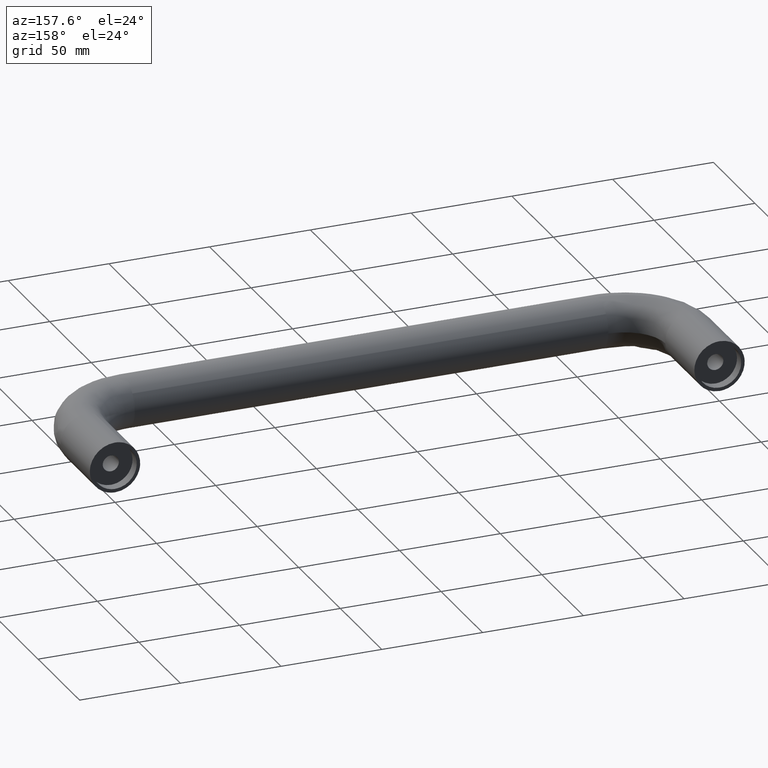
[diagram: clean part render]
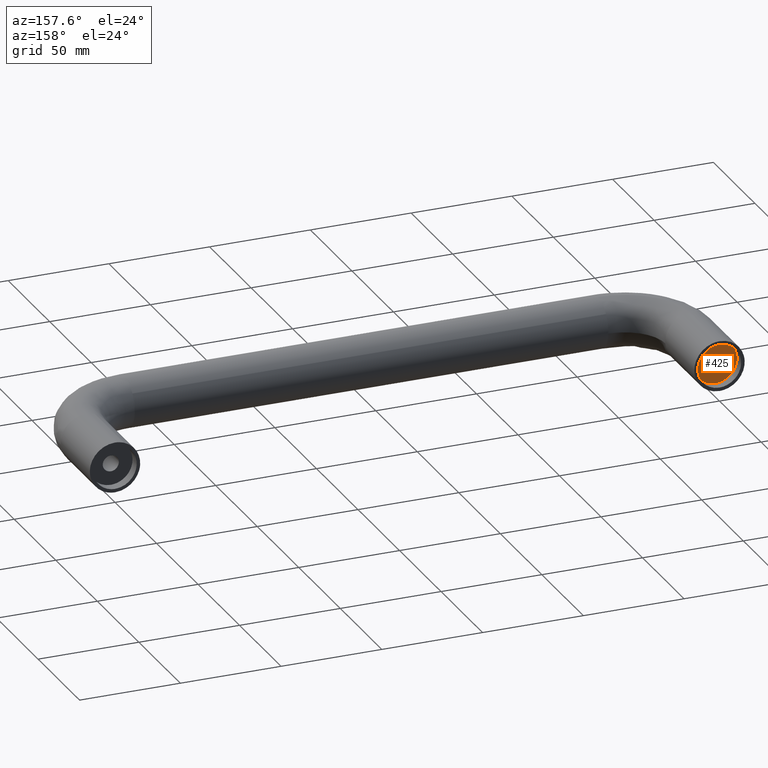
[diagram: same view with one face highlighted and labeled with its STEP entity id]
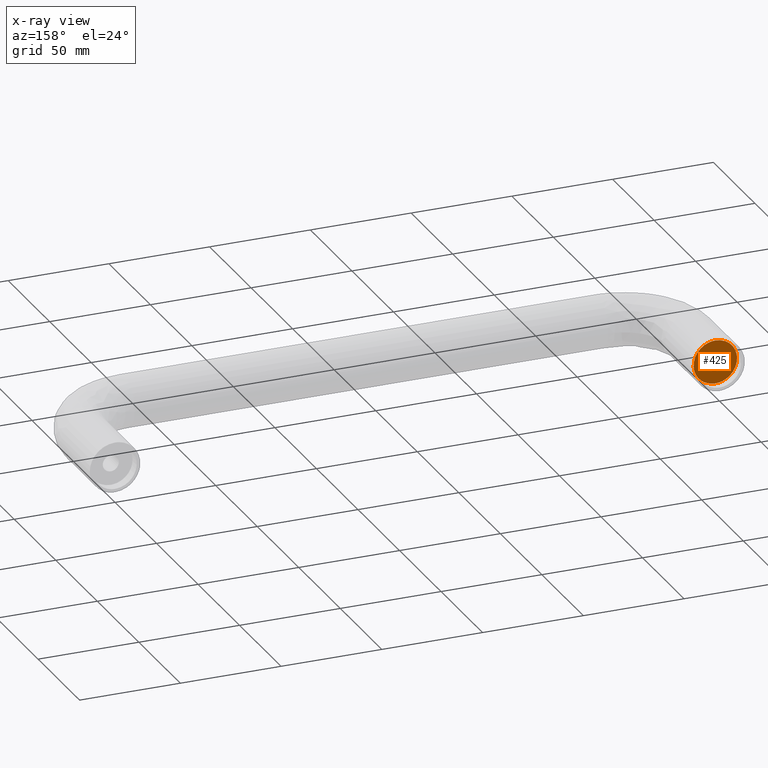
[diagram: x-ray of the same camera — body ghosted, the highlighted face saturated]
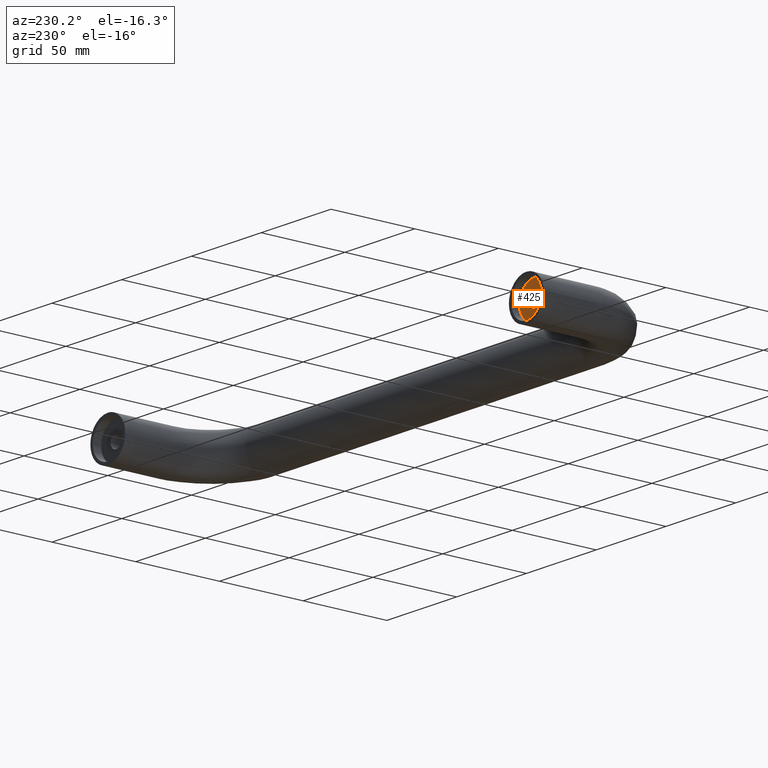
[diagram: same view with one face highlighted and labeled with its STEP entity id]
A machine part, auxiliary view. The second image highlights one B-rep face of the part: STEP entity #425.
The next image is the same camera in x-ray: the body ghosted, the highlighted face saturated — about 0% of this face is hidden behind the body in this view.
A second angle (auxiliary view) of the same face is appended — the face is thin or edge-on in the first view.
In plain terms, the highlighted face is a freeform B-spline surface patch.
Its self-contained STEP definition (entity closure, byte-faithful):
#62=CARTESIAN_POINT('',(0.0,-5.0,10.800000000000001));
#63=VERTEX_POINT('',#62);
#64=CARTESIAN_POINT('',(-10.766707764273210,-5.000000000000078,0.847351118892327));
#65=VERTEX_POINT('',#64);
#66=CARTESIAN_POINT('',(0.0,-5.0,10.800000000000001));
#67=CARTESIAN_POINT('',(-9.983423927657171,-4.999999999999999,10.800000000000001));
#68=CARTESIAN_POINT('',(-10.766707764273203,-5.000000000000078,0.847351118892327));
#76=(BOUNDED_CURVE()B_SPLINE_CURVE(2,(#66,#67,#68),.UNSPECIFIED.,.F.,.U.)B_SPLINE_CURVE_WITH_KNOTS((3,3),(0.0,0.236331413915305),.UNSPECIFIED.)CURVE()GEOMETRIC_REPRESENTATION_ITEM()RATIONAL_B_SPLINE_CURVE((1.0,0.723120525886448,0.969723592583950))REPRESENTATION_ITEM(''));
#77=EDGE_CURVE('',#63,#65,#76,.T.);
#118=CARTESIAN_POINT('',(10.766707764273210,-5.000000000000078,-0.847351118892325));
#119=VERTEX_POINT('',#118);
#125=CARTESIAN_POINT('',(10.766707764273212,-5.000000000000078,-0.847351118892325));
#126=CARTESIAN_POINT('',(10.799999999999997,-5.0,-0.424329581689702));
#127=CARTESIAN_POINT('',(10.800000000000001,-5.0,0.0));
#128=CARTESIAN_POINT('',(10.800000000000001,-5.000000000000001,10.800000000000001));
#129=CARTESIAN_POINT('',(0.0,-5.0,10.800000000000001));
#137=(BOUNDED_CURVE()B_SPLINE_CURVE(2,(#125,#126,#127,#128,#129),.UNSPECIFIED.,.F.,.U.)B_SPLINE_CURVE_WITH_KNOTS((3,2,3),(0.736331413915305,0.750000000000000,1.0),.UNSPECIFIED.)CURVE()GEOMETRIC_REPRESENTATION_ITEM()RATIONAL_B_SPLINE_CURVE((0.969723592583950,0.983986255300099,1.0,0.707106781186548,1.0))REPRESENTATION_ITEM(''));
#138=EDGE_CURVE('',#119,#63,#137,.T.);
#161=CARTESIAN_POINT('',(0.0,-5.0,-10.800000000000001));
#162=VERTEX_POINT('',#161);
#163=CARTESIAN_POINT('',(-10.766707764273203,-5.000000000000078,0.847351118892327));
#164=CARTESIAN_POINT('',(-10.799999999999999,-5.000000000000001,0.424329581689704));
#165=CARTESIAN_POINT('',(-10.800000000000001,-5.0,0.0));
#166=CARTESIAN_POINT('',(-10.800000000000001,-5.000000000000001,-10.800000000000001));
#167=CARTESIAN_POINT('',(0.0,-5.0,-10.800000000000001));
#175=(BOUNDED_CURVE()B_SPLINE_CURVE(2,(#163,#164,#165,#166,#167),.UNSPECIFIED.,.F.,.U.)B_SPLINE_CURVE_WITH_KNOTS((3,2,3),(0.236331413915305,0.250000000000000,0.500000000000000),.UNSPECIFIED.)CURVE()GEOMETRIC_REPRESENTATION_ITEM()RATIONAL_B_SPLINE_CURVE((0.969723592583950,0.983986255300099,1.0,0.707106781186548,1.0))REPRESENTATION_ITEM(''));
#176=EDGE_CURVE('',#65,#162,#175,.T.);
#178=CARTESIAN_POINT('',(0.0,-5.0,-10.800000000000001));
#179=CARTESIAN_POINT('',(9.983423927657176,-5.0,-10.800000000000002));
#180=CARTESIAN_POINT('',(10.766707764273212,-5.000000000000078,-0.847351118892325));
#188=(BOUNDED_CURVE()B_SPLINE_CURVE(2,(#178,#179,#180),.UNSPECIFIED.,.F.,.U.)B_SPLINE_CURVE_WITH_KNOTS((3,3),(0.500000000000000,0.736331413915305),.UNSPECIFIED.)CURVE()GEOMETRIC_REPRESENTATION_ITEM()RATIONAL_B_SPLINE_CURVE((1.0,0.723120525886448,0.969723592583950))REPRESENTATION_ITEM(''));
#189=EDGE_CURVE('',#162,#119,#188,.T.);
#244=CARTESIAN_POINT('',(0.0,-5.0,4.0));
#245=VERTEX_POINT('',#244);
#246=CARTESIAN_POINT('',(-3.987669334730117,-5.0,0.313836385483050));
#247=VERTEX_POINT('',#246);
#248=CARTESIAN_POINT('',(0.0,-5.0,4.0));
#249=CARTESIAN_POINT('',(-3.697561961848928,-5.000000000000001,4.0));
#250=CARTESIAN_POINT('',(-3.987669334730117,-5.0,0.313836385483050));
#258=(BOUNDED_CURVE()B_SPLINE_CURVE(2,(#248,#249,#250),.UNSPECIFIED.,.F.,.U.)B_SPLINE_CURVE_WITH_KNOTS((3,3),(0.0,0.236331300411662),.UNSPECIFIED.)CURVE()GEOMETRIC_REPRESENTATION_ITEM()RATIONAL_B_SPLINE_CURVE((1.0,0.723120658864237,0.969723355710386))REPRESENTATION_ITEM(''));
#259=EDGE_CURVE('',#245,#247,#258,.T.);
#261=CARTESIAN_POINT('',(3.987669334730117,-4.999999999999999,-0.313836385483049));
#262=VERTEX_POINT('',#261);
#263=CARTESIAN_POINT('',(3.987669334730117,-4.999999999999999,-0.313836385483050));
#264=CARTESIAN_POINT('',(4.000000000000000,-5.0,-0.157160430614281));
#265=CARTESIAN_POINT('',(4.0,-5.0,0.0));
#266=CARTESIAN_POINT('',(4.000000000000000,-5.000000000000001,4.000000000000000));
#267=CARTESIAN_POINT('',(0.0,-5.0,4.0));
#275=(BOUNDED_CURVE()B_SPLINE_CURVE(2,(#263,#264,#265,#266,#267),.UNSPECIFIED.,.F.,.U.)B_SPLINE_CURVE_WITH_KNOTS((3,2,3),(0.736331300411662,0.750000000000000,1.0),.UNSPECIFIED.)CURVE()GEOMETRIC_REPRESENTATION_ITEM()RATIONAL_B_SPLINE_CURVE((0.969723355710386,0.983986122322310,1.0,0.707106781186548,1.0))REPRESENTATION_ITEM(''));
#276=EDGE_CURVE('',#262,#245,#275,.T.);
#343=CARTESIAN_POINT('',(0.0,-5.0,-4.0));
#344=VERTEX_POINT('',#343);
#345=CARTESIAN_POINT('',(-3.987669334730117,-5.0,0.313836385483050));
#346=CARTESIAN_POINT('',(-4.000000000000000,-5.0,0.157160430614282));
#347=CARTESIAN_POINT('',(-4.0,-5.0,0.0));
#348=CARTESIAN_POINT('',(-4.000000000000000,-5.000000000000001,-4.000000000000000));
#349=CARTESIAN_POINT('',(0.0,-5.0,-4.0));
#357=(BOUNDED_CURVE()B_SPLINE_CURVE(2,(#345,#346,#347,#348,#349),.UNSPECIFIED.,.F.,.U.)B_SPLINE_CURVE_WITH_KNOTS((3,2,3),(0.236331300411662,0.250000000000000,0.500000000000000),.UNSPECIFIED.)CURVE()GEOMETRIC_REPRESENTATION_ITEM()RATIONAL_B_SPLINE_CURVE((0.969723355710386,0.983986122322310,1.0,0.707106781186548,1.0))REPRESENTATION_ITEM(''));
#358=EDGE_CURVE('',#247,#344,#357,.T.);
#392=CARTESIAN_POINT('',(0.0,-5.0,-4.0));
#393=CARTESIAN_POINT('',(3.697561961848904,-4.999999999999998,-4.000000000000000));
#394=CARTESIAN_POINT('',(3.987669334730116,-4.999999999999999,-0.313836385483050));
#402=(BOUNDED_CURVE()B_SPLINE_CURVE(2,(#392,#393,#394),.UNSPECIFIED.,.F.,.U.)B_SPLINE_CURVE_WITH_KNOTS((3,3),(0.500000000000000,0.736331300411661),.UNSPECIFIED.)CURVE()GEOMETRIC_REPRESENTATION_ITEM()RATIONAL_B_SPLINE_CURVE((1.0,0.723120658864239,0.969723355710384))REPRESENTATION_ITEM(''));
#403=EDGE_CURVE('',#344,#262,#402,.T.);
#408=CARTESIAN_POINT('',(-11.875623329449050,-5.0,11.878920160900361));
#409=CARTESIAN_POINT('',(11.875623908806199,-5.0,11.878920160900361));
#410=CARTESIAN_POINT('',(-11.875623329449050,-5.0,-11.878920547138449));
#411=CARTESIAN_POINT('',(11.875623908806199,-5.0,-11.878920547138449));
#412=B_SPLINE_SURFACE_WITH_KNOTS('',1,1,((#408,#410),(#409,#411)),.UNSPECIFIED.,.F.,.F.,.U.,(2,2),(2,2),(0.0,23.751247238255239),(0.0,23.757840708038810),.UNSPECIFIED.);
#413=ORIENTED_EDGE('',*,*,#138,.F.);
#414=ORIENTED_EDGE('',*,*,#189,.F.);
#415=ORIENTED_EDGE('',*,*,#176,.F.);
#416=ORIENTED_EDGE('',*,*,#77,.F.);
#417=EDGE_LOOP('',(#413,#414,#415,#416));
#418=FACE_OUTER_BOUND('',#417,.T.);
#419=ORIENTED_EDGE('',*,*,#403,.T.);
#420=ORIENTED_EDGE('',*,*,#276,.T.);
#421=ORIENTED_EDGE('',*,*,#259,.T.);
#422=ORIENTED_EDGE('',*,*,#358,.T.);
#423=EDGE_LOOP('',(#419,#420,#421,#422));
#424=FACE_BOUND('',#423,.T.);
#425=ADVANCED_FACE('',(#418,#424),#412,.T.);